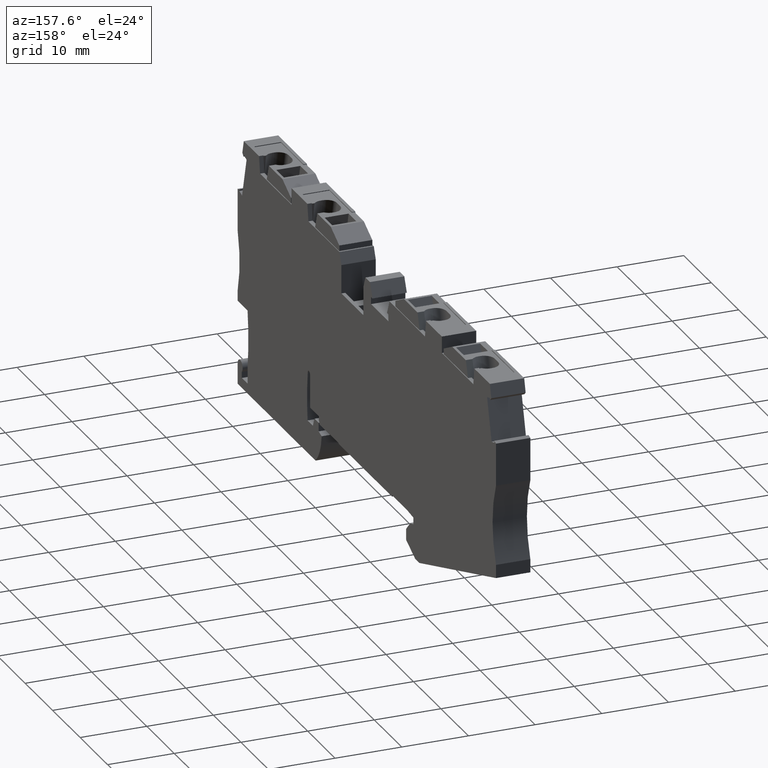
[diagram: clean part render]
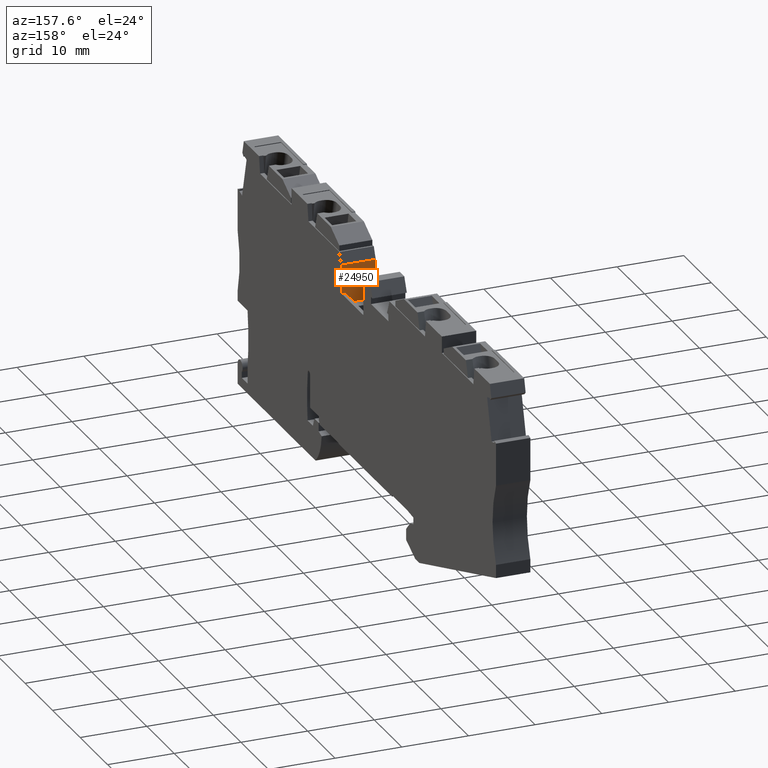
[diagram: same view with one face highlighted and labeled with its STEP entity id]
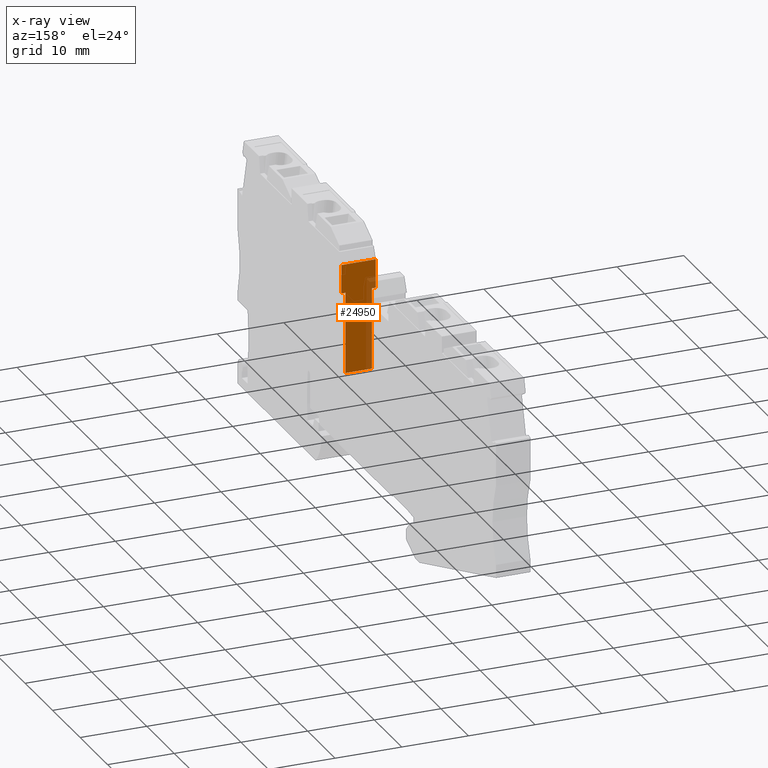
[diagram: x-ray of the same camera — body ghosted, the highlighted face saturated]
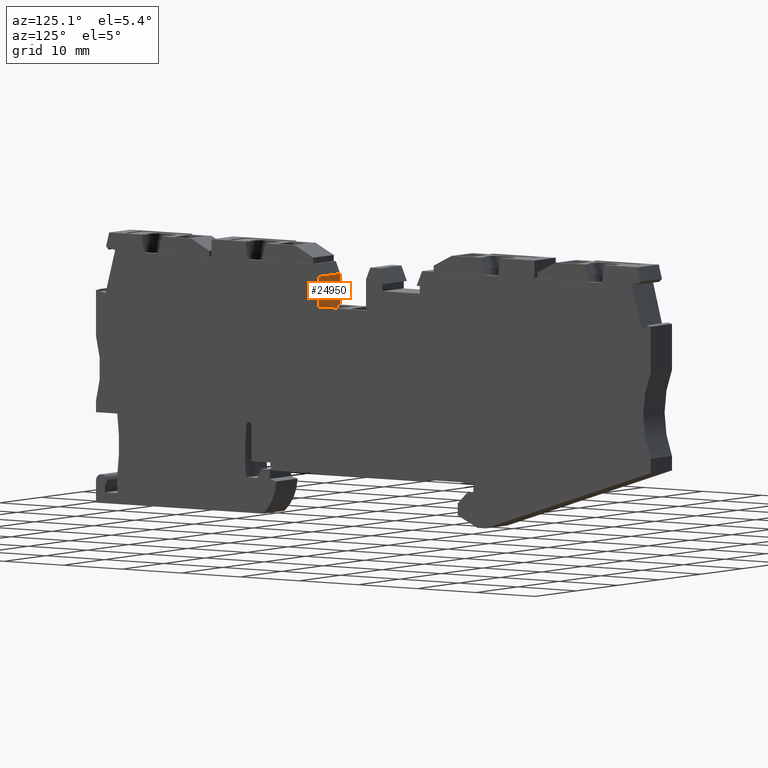
[diagram: same view with one face highlighted and labeled with its STEP entity id]
A machine part, auxiliary view. The second image highlights one B-rep face of the part: STEP entity #24950.
The next image is the same camera in x-ray: the body ghosted, the highlighted face saturated — about 18% of this face is hidden behind the body in this view.
A second angle (auxiliary view) of the same face is appended — the face is thin or edge-on in the first view.
In plain terms, the highlighted planar face has unit normal (0, 1, -0).
Its self-contained STEP definition (entity closure, byte-faithful):
#2610=CARTESIAN_POINT('',(24.1831195422086,26.2248169445842,
-5.15000000006034));
#2620=VERTEX_POINT('',#2610);
#2650=CARTESIAN_POINT('',(27.4031221755072,1.71076731429297E-12,
-5.15000000010402));
#2660=DIRECTION('',(0.121869343405144,-0.992546151641323,
1.26713462326608E-16));
#2670=VECTOR('',#2660,1.);
#2680=LINE('',#2650,#2670);
#2690=CARTESIAN_POINT('',(23.6590813655666,30.4927653966404,
-5.15000000005787));
#2700=VERTEX_POINT('',#2690);
#2710=EDGE_CURVE('',#2700,#2620,#2680,.T.);
#10980=CARTESIAN_POINT('',(23.6590813655665,30.4927653966404,
7.79327225748184E-11));
#10990=VERTEX_POINT('',#10980);
#11020=CARTESIAN_POINT('',(27.4031221755078,1.69572630433719E-12,
-7.05089196732096E-11));
#11030=DIRECTION('',(-0.121869343405139,0.992546151641324,
-1.26713462326487E-16));
#11040=VECTOR('',#11030,1.);
#11050=LINE('',#11020,#11040);
#11060=CARTESIAN_POINT('',(24.1831195422084,26.2248169445842,
7.81811081760905E-11));
#11070=VERTEX_POINT('',#11060);
#11080=EDGE_CURVE('',#11070,#10990,#11050,.T.);
#23270=CARTESIAN_POINT('',(25.6699255317515,14.1157538945568,
-7.04847425429774E-11));
#23280=DIRECTION('',(-2.51307456494405E-14,-7.13314385126315E-16,1.));
#23290=VECTOR('',#23280,1.);
#23300=LINE('',#23270,#23290);
#23310=CARTESIAN_POINT('',(25.6699255317516,14.1157538945568,
-4.5750000000364));
#23320=VERTEX_POINT('',#23310);
#23330=CARTESIAN_POINT('',(25.6699255317515,14.1157538945568,
-0.575000000036356));
#23340=VERTEX_POINT('',#23330);
#23350=EDGE_CURVE('',#23320,#23340,#23300,.T.);
#23860=CARTESIAN_POINT('',(24.1831195422084,26.2248169445842,
-0.575000000036358));
#23870=VERTEX_POINT('',#23860);
#23900=CARTESIAN_POINT('',(27.4031221755078,1.6974056404001E-12,
-0.575000000036355));
#23910=DIRECTION('',(-0.121869343405139,0.992546151641324,
-1.26713462326487E-16));
#23920=VECTOR('',#23910,1.);
#23930=LINE('',#23900,#23920);
#23940=EDGE_CURVE('',#23340,#23870,#23930,.T.);
#24430=CARTESIAN_POINT('',(27.4031221755079,1.70908797822973E-12,
-4.57500000003639));
#24440=DIRECTION('',(-0.121869343405139,0.992546151641324,
-1.26713462326487E-16));
#24450=VECTOR('',#24440,1.);
#24460=LINE('',#24430,#24450);
#24470=CARTESIAN_POINT('',(24.1831195422085,26.2248169445842,
-4.5750000000364));
#24480=VERTEX_POINT('',#24470);
#24490=EDGE_CURVE('',#23320,#24480,#24460,.T.);
#24690=CARTESIAN_POINT('',(23.9759416584197,27.9121454023745,
-0.575000000070523));
#24700=DIRECTION('',(0.992546151641323,0.121869343405139,
2.50303560379859E-14));
#24710=DIRECTION('',(0.121869343405139,-0.992546151641324,
1.26713462326487E-16));
#24720=AXIS2_PLACEMENT_3D('',#24690,#24700,#24710);
#24730=PLANE('',#24720);
#24740=ORIENTED_EDGE('',*,*,#24490,.T.);
#24750=ORIENTED_EDGE('',*,*,#23350,.F.);
#24760=ORIENTED_EDGE('',*,*,#23940,.F.);
#24770=CARTESIAN_POINT('',(24.1831195422084,26.2248169445842,
-7.04862884472178E-11));
#24780=DIRECTION('',(2.48601413473519E-14,2.9172095662369E-15,-1.));
#24790=VECTOR('',#24780,1.);
#24800=LINE('',#24770,#24790);
#24810=EDGE_CURVE('',#11070,#23870,#24800,.T.);
#24820=ORIENTED_EDGE('',*,*,#24810,.T.);
#24830=ORIENTED_EDGE('',*,*,#11080,.F.);
#24840=CARTESIAN_POINT('',(23.6590813655653,30.4927653966424,
-7.04868333151058E-11));
#24850=DIRECTION('',(-2.48597269628214E-14,-2.92058445740682E-15,1.));
#24860=VECTOR('',#24850,1.);
#24870=LINE('',#24840,#24860);
#24880=EDGE_CURVE('',#2700,#10990,#24870,.T.);
#24890=ORIENTED_EDGE('',*,*,#24880,.T.);
#24900=ORIENTED_EDGE('',*,*,#2710,.F.);
#24910=EDGE_CURVE('',#24480,#2620,#24800,.T.);
#24920=ORIENTED_EDGE('',*,*,#24910,.T.);
#24930=EDGE_LOOP('',(#24920,#24900,#24890,#24830,#24820,#24760,#24750,
#24740));
#24940=FACE_OUTER_BOUND('',#24930,.T.);
#24950=ADVANCED_FACE('',(#24940),#24730,.T.);